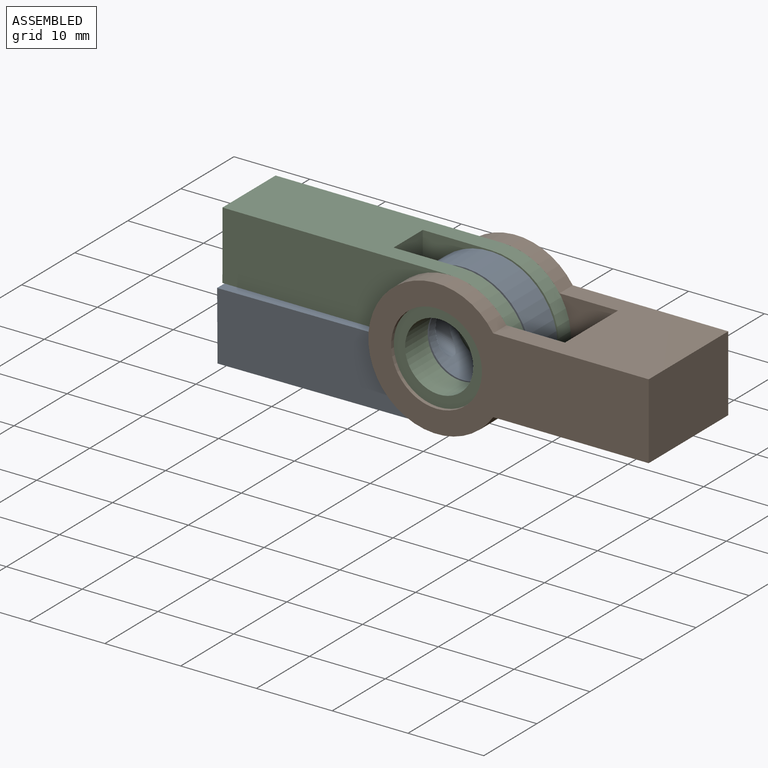
[diagram: assembled view]
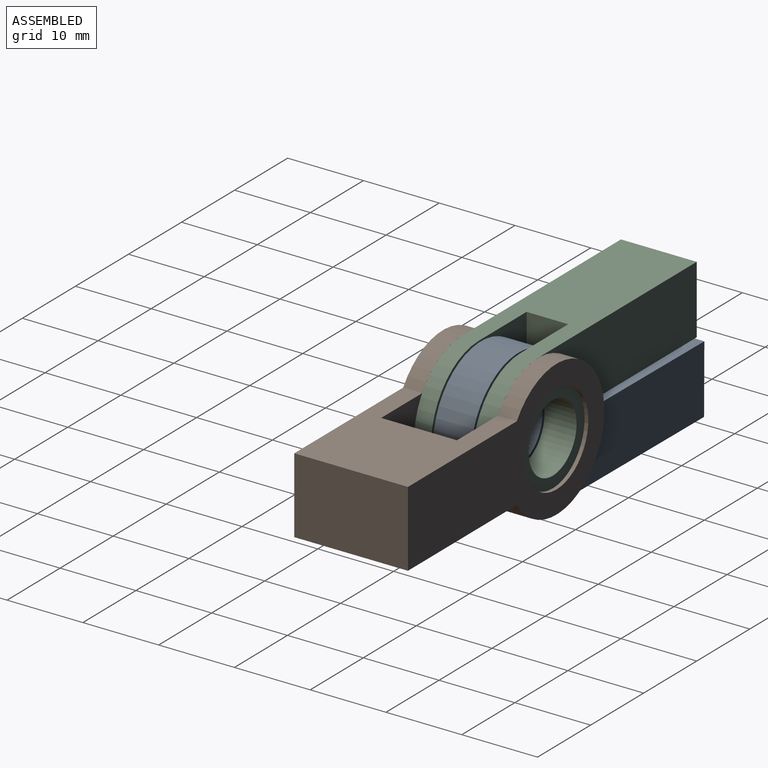
[diagram: assembled view, second angle]
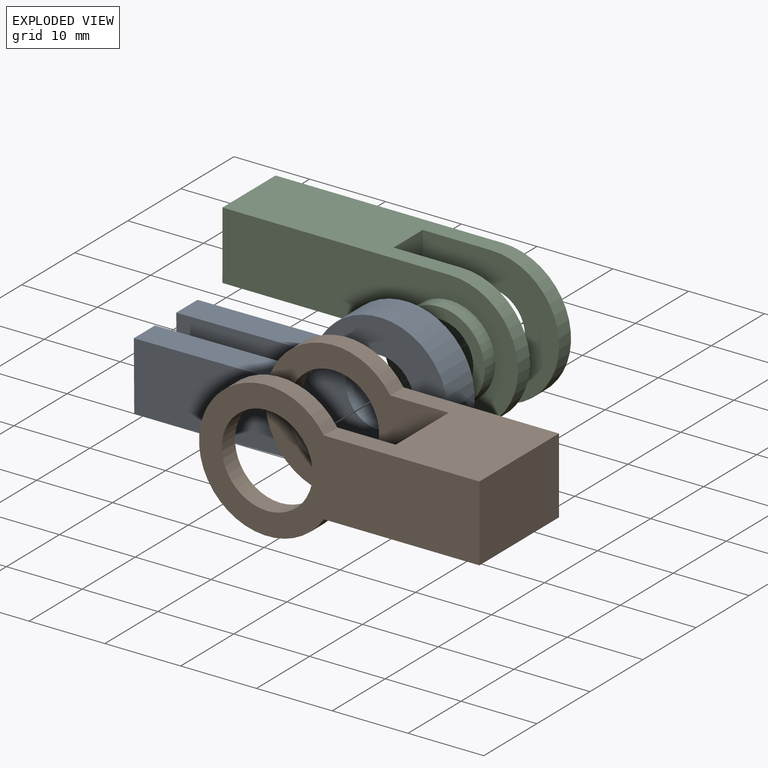
[diagram: exploded view]
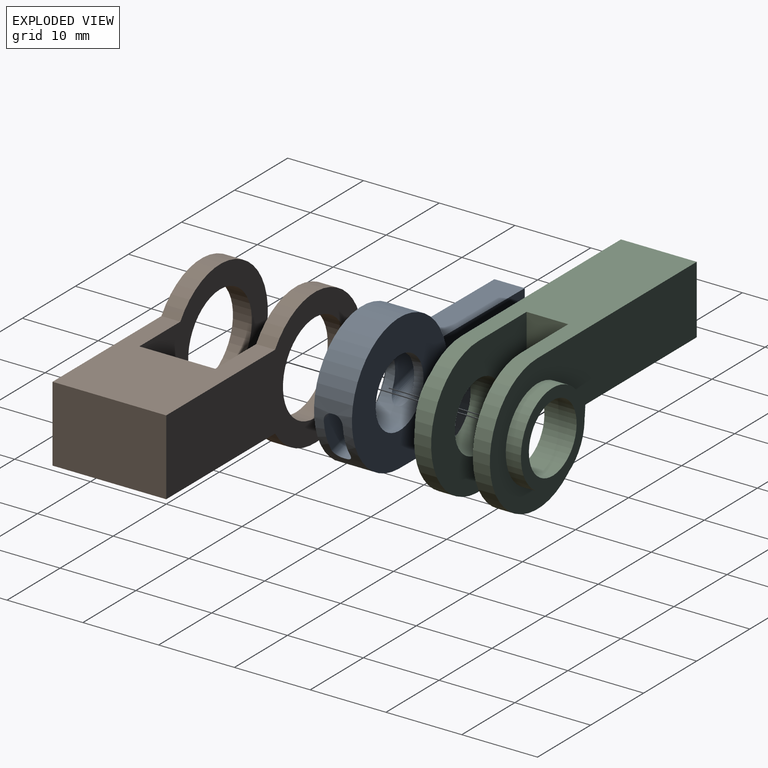
[diagram: exploded view, second angle]
ASSEMBLY  parts=3 mates=2
PART A: 32 faces, bbox 38x12x25.5 mm
  f0: plane 12x8.69mm, normal (-0.97,0,-0.26), area 84mm2, adj f1,f5,f7,f8,f9,f29,f30,f31
  f1: plane 20.28x5.44mm, normal (-0.26,0,0.97), area 82mm2, adj f0,f2,f6,f8,f10,f17,f28,f31
  f2: cylinder r=9mm len=18mm, axis (0,1,0), area 184.8mm2, adj f1,f5,f7,f10,f11,f12,f13,f17
  f3: cylinder r=4.5mm len=9mm, axis (0,1,0), area 106.6mm2, adj f10,f11,f12,f13,f14,f15,f16,f17
  f4: cylinder r=10mm len=7.78mm, axis (0,1,0), area 39.2mm2, adj f5,f7,f9,f11
  f5: plane 28.98x12mm, normal (0.26,0,-0.97), area 329.5mm2, adj f0,f2,f4,f6,f8,f9,f10,f11
  f6: cylinder r=10mm len=7.78mm, axis (0,1,0), area 39.2mm2, adj f1,f5,f8,f10
  f7: plane 20.28x5.44mm, normal (-0.26,0,0.97), area 82mm2, adj f0,f2,f4,f9,f11,f13,f28,f30
  f8: plane 27.1x13.87mm, normal (0,-1,0), area 194.4mm2, adj f0,f1,f5,f6
  f9: plane 27.1x13.87mm, normal (0,1,0), area 194.4mm2, adj f0,f4,f5,f7
  f10: plane 18.82x18.66mm, normal (0,-1,0), area 202.8mm2, adj f1,f2,f3,f5,f6
  f11: plane 18.82x18.66mm, normal (0,1,0), area 202.8mm2, adj f2,f3,f4,f5,f7
  f12: cylinder r=1.1mm len=5.15mm, axis (1,0,0), area 8.3mm2, adj f2,f3,f13,f19
  f13: plane 7.18x4.3mm, normal (0,-1,0), area 20.6mm2, adj f2,f3,f7,f12,f14,f28
  f14: cylinder r=1.1mm len=8.55mm, axis (1,0,0), area 13.4mm2, adj f3,f13,f15,f28
  f15: plane 8.25x0.3mm, normal (0,0,1), area 2.5mm2, adj f3,f14,f16,f28
  f16: cylinder r=1.1mm len=8.55mm, axis (1,0,0), area 13.4mm2, adj f3,f15,f17,f28
  f17: plane 7.18x4.3mm, normal (0,1,0), area 20.6mm2, adj f1,f2,f3,f16,f18,f28
  f18: cylinder r=1.1mm len=5.15mm, axis (1,0,0), area 8.3mm2, adj f2,f3,f17,f19
  f19: plane 4.9x0.3mm, normal (0,0,-1), area 1.5mm2, adj f2,f3,f12,f18
  f20: plane 4.9x0.3mm, normal (0,0,-1), area 1.5mm2, adj f2,f3,f21,f27
  f21: cylinder r=1.1mm len=5.15mm, axis (1,0,0), area 8.3mm2, adj f2,f3,f20,f22
  f22: plane 5.56x4.3mm, normal (0,1,0), area 19.9mm2, adj f2,f3,f21,f23
  f23: cylinder r=1.1mm len=6.46mm, axis (1,0,0), area 9.7mm2, adj f2,f3,f22,f24
  f24: plane 6x0.3mm, normal (0,0,1), area 1.8mm2, adj f2,f3,f23,f25
  f25: cylinder r=1.1mm len=6.46mm, axis (1,0,0), area 9.7mm2, adj f2,f3,f24,f26
  f26: plane 5.56x4.3mm, normal (0,-1,0), area 19.9mm2, adj f2,f3,f25,f27
  f27: cylinder r=1.1mm len=5.15mm, axis (1,0,0), area 8.3mm2, adj f2,f3,f20,f26
  f28: plane 4x2.9mm, normal (-0.97,0,-0.26), area 9.6mm2, adj f1,f7,f13,f14,f15,f16,f17,f29
  f29: plane 17.58x7.82mm, normal (-0.41,0,0.91), area 76.9mm2, adj f0,f28,f30,f31
  f30: plane 19.13x10.71mm, normal (0,-1,0), area 85.5mm2, adj f0,f7,f28,f29
  f31: plane 19.13x10.71mm, normal (0,1,0), area 85.5mm2, adj f0,f1,f28,f29
PART B: 12 faces, bbox 37x15x18 mm
  f0: cylinder r=9mm len=18mm, axis (0,1,0), area 114.9mm2, adj f2,f4,f8,f10
  f1: cylinder r=6mm len=12mm, axis (0,1,0), area 94.2mm2, adj f8,f10
  f2: plane 20.52x15mm, normal (0,0,-1), area 230.6mm2, adj f0,f3,f5,f7,f8,f9,f10,f11
  f3: plane 15x10mm, normal (1,0,0), area 150mm2, adj f2,f4,f7,f8
  f4: plane 20.52x15mm, normal (0,0,1), area 230.6mm2, adj f0,f3,f5,f7,f8,f9,f10,f11
  f5: cylinder r=9mm len=18mm, axis (0,1,0), area 114.9mm2, adj f2,f4,f7,f11
  f6: cylinder r=6mm len=12mm, axis (0,1,0), area 94.2mm2, adj f7,f11
  f7: plane 37x18mm, normal (0,-1,0), area 336.2mm2, adj f2,f3,f4,f5,f6
  f8: plane 37x18mm, normal (0,1,0), area 336.2mm2, adj f0,f1,f2,f3,f4
  f9: cylinder r=16mm len=10mm, axis (0,-1,0), area 101.7mm2, adj f2,f4,f10,f11
  f10: plane 25x18mm, normal (0,-1,0), area 213.6mm2, adj f0,f1,f2,f4,f9
  f11: plane 25x18mm, normal (0,1,0), area 213.6mm2, adj f2,f4,f5,f6,f9
PART C: 22 faces, bbox 38x14x25.5 mm
  f0: plane 20.28x5.44mm, normal (-0.26,0,-0.97), area 64.5mm2, adj f1,f2,f5,f10,f11,f19,f21
  f1: plane 4x2.9mm, normal (-0.97,0,0.26), area 9.5mm2, adj f0,f6,f18,f19,f20,f21
  f2: cylinder r=9mm len=18mm, axis (0,1,0), area 95.4mm2, adj f0,f4,f10,f12
  f3: cylinder r=4.5mm len=9mm, axis (0,1,0), area 120.2mm2, adj f12,f17
  f4: plane 28.98x10mm, normal (0.26,0,0.97), area 250.5mm2, adj f2,f5,f7,f9,f10,f11,f12,f13
  f5: plane 10x8.69mm, normal (-0.97,0,0.26), area 66mm2, adj f0,f4,f6,f9,f10,f18,f19,f20
  f6: plane 20.28x5.44mm, normal (-0.26,0,-0.97), area 64.5mm2, adj f1,f5,f7,f9,f11,f20,f21
  f7: cylinder r=9mm len=18mm, axis (0,1,0), area 95.4mm2, adj f4,f6,f9,f13
  f8: cylinder r=4.5mm len=9mm, axis (0,1,0), area 120.2mm2, adj f13,f15
  f9: plane 37.98x25.46mm, normal (0,-1,0), area 347.8mm2, adj f4,f5,f6,f7,f14
  f10: plane 37.98x25.46mm, normal (0,1,0), area 347.8mm2, adj f0,f2,f4,f5,f16
  f11: plane 8.69x5.5mm, normal (0.97,0,-0.26), area 47mm2, adj f0,f4,f6,f12,f13,f21
  f12: plane 20.02x18mm, normal (0,-1,0), area 208.2mm2, adj f2,f3,f4,f11
  f13: plane 20.02x18mm, normal (0,1,0), area 208.2mm2, adj f4,f7,f8,f11
  f14: cylinder r=6mm len=12mm, axis (0,1,0), area 75.4mm2, adj f9,f15
  f15: plane 12x12mm, normal (0,-1,0), area 49.5mm2, adj f8,f14
  f16: cylinder r=6mm len=12mm, axis (0,-1,0), area 75.4mm2, adj f10,f17
  f17: plane 12x12mm, normal (0,1,0), area 49.5mm2, adj f3,f16
  f18: plane 17.58x7.82mm, normal (-0.41,0,-0.91), area 76.9mm2, adj f1,f5,f19,f20
  f19: plane 19.13x10.71mm, normal (0,-1,0), area 85.5mm2, adj f0,f1,f5,f18
  f20: plane 19.13x10.71mm, normal (0,1,0), area 85.5mm2, adj f1,f5,f6,f18
  f21: cylinder r=1.25mm len=2.5mm, axis (-0.97,0,0.26), area 7.9mm2, adj f0,f1,f6,f11
PLACE A rot(axis=(0,1,0),14.6deg) t=(0,0,0)mm
PLACE B at identity fixed
PLACE C rot(axis=(0,-1,0),14.9deg) t=(0,0,0)mm
MATE revolute C.f16 <-> B.f1  axis (0,1,0) through (0,5,0)mm
MATE revolute A.f3 <-> C.f3  axis (0,1,0) through (0,2.5,0)mm
